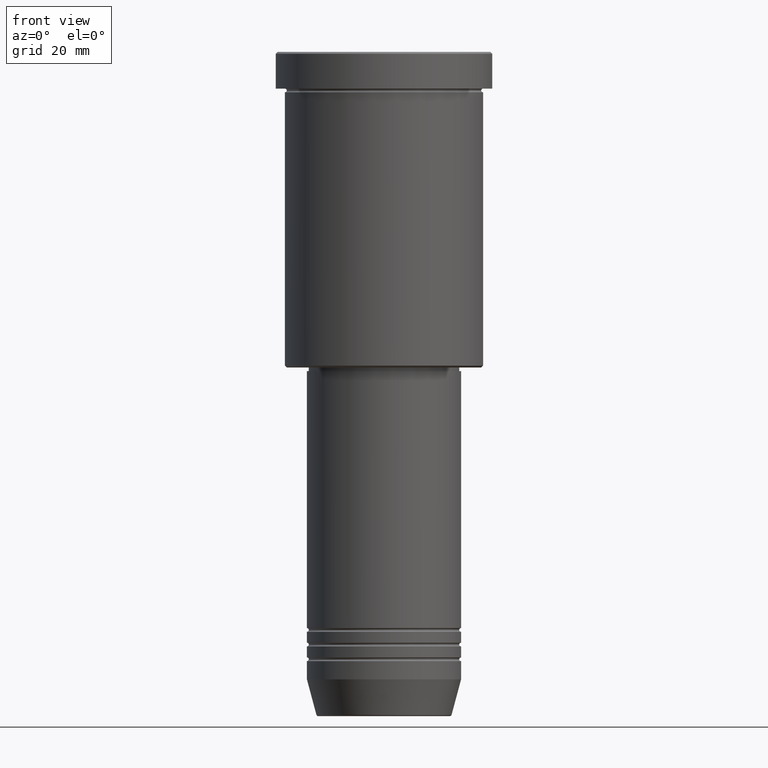
[diagram: clean part render]
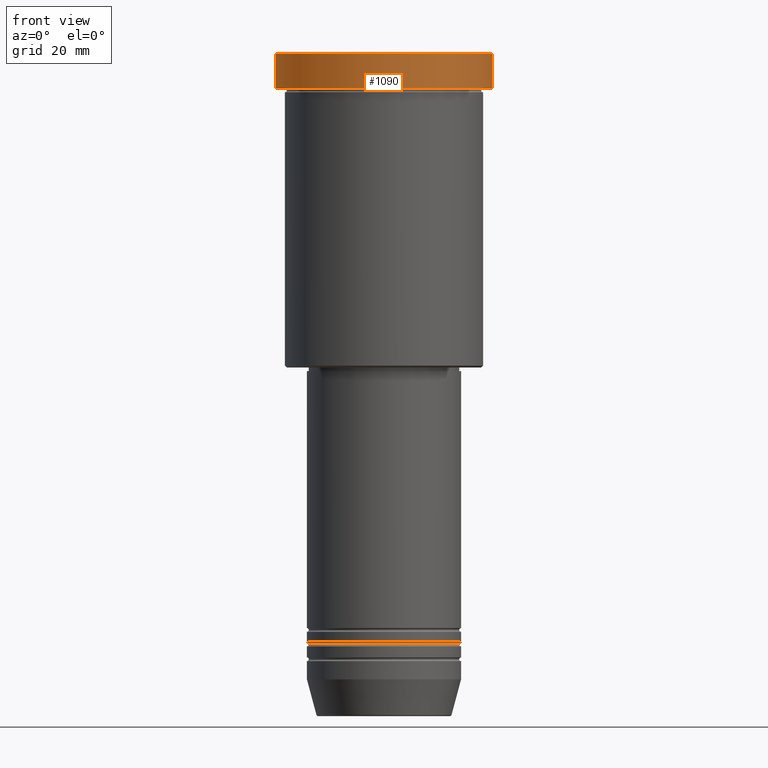
[diagram: same view with one face highlighted and labeled with its STEP entity id]
A machine part, front view. The second image highlights one B-rep face of the part: STEP entity #1090.
In plain terms, the highlighted cylindrical surface (partial cylindrical patch) has radius 29.5 mm, axis along (-0, -0, 1).
Its self-contained STEP definition (entity closure, byte-faithful):
#7 = CARTESIAN_POINT ( 'NONE',  ( 29.50000000000000000, 0.000000000000000000, -9.999999999999992895 ) ) ;
#39 = VECTOR ( 'NONE', #718, 1000.000000000000000 ) ;
#42 = EDGE_CURVE ( 'NONE', #979, #1159, #1024, .T. ) ;
#78 = CARTESIAN_POINT ( 'NONE',  ( -29.50000000000000000, 3.612708057484691604E-15, -9.999999999999992895 ) ) ;
#91 = ORIENTED_EDGE ( 'NONE', *, *, #473, .T. ) ;
#97 = EDGE_LOOP ( 'NONE', ( #912, #890, #271, #91 ) ) ;
#101 = DIRECTION ( 'NONE',  ( 1.000000000000000000, 0.000000000000000000, 0.000000000000000000 ) ) ;
#105 = CIRCLE ( 'NONE', #752, 29.50000000000000000 ) ;
#190 = LINE ( 'NONE', #347, #39 ) ;
#197 = VECTOR ( 'NONE', #1144, 1000.000000000000000 ) ;
#271 = ORIENTED_EDGE ( 'NONE', *, *, #772, .T. ) ;
#279 = VERTEX_POINT ( 'NONE', #1160 ) ;
#312 = DIRECTION ( 'NONE',  ( 1.000000000000000000, 0.000000000000000000, 0.000000000000000000 ) ) ;
#347 = CARTESIAN_POINT ( 'NONE',  ( -29.50000000000000000, 3.612708057484691604E-15, 0.000000000000000000 ) ) ;
#471 = CARTESIAN_POINT ( 'NONE',  ( 0.000000000000000000, 0.000000000000000000, -9.999999999999992895 ) ) ;
#473 = EDGE_CURVE ( 'NONE', #607, #279, #105, .T. ) ;
#507 = AXIS2_PLACEMENT_3D ( 'NONE', #471, #758, #841 ) ;
#607 = VERTEX_POINT ( 'NONE', #801 ) ;
#629 = CYLINDRICAL_SURFACE ( 'NONE', #658, 29.50000000000000000 ) ;
#658 = AXIS2_PLACEMENT_3D ( 'NONE', #1000, #1179, #101 ) ;
#671 = DIRECTION ( 'NONE',  ( 0.000000000000000000, 0.000000000000000000, -1.000000000000000000 ) ) ;
#718 = DIRECTION ( 'NONE',  ( -0.000000000000000000, -0.000000000000000000, 1.000000000000000000 ) ) ;
#752 = AXIS2_PLACEMENT_3D ( 'NONE', #942, #671, #312 ) ;
#758 = DIRECTION ( 'NONE',  ( -0.000000000000000000, -0.000000000000000000, 1.000000000000000000 ) ) ;
#772 = EDGE_CURVE ( 'NONE', #1159, #607, #982, .T. ) ;
#801 = CARTESIAN_POINT ( 'NONE',  ( 29.50000000000000000, 0.000000000000000000, -0.5000000000000004441 ) ) ;
#841 = DIRECTION ( 'NONE',  ( 1.000000000000000000, 0.000000000000000000, 0.000000000000000000 ) ) ;
#889 = CARTESIAN_POINT ( 'NONE',  ( 29.50000000000000000, 0.000000000000000000, 0.000000000000000000 ) ) ;
#890 = ORIENTED_EDGE ( 'NONE', *, *, #42, .T. ) ;
#912 = ORIENTED_EDGE ( 'NONE', *, *, #1098, .F. ) ;
#942 = CARTESIAN_POINT ( 'NONE',  ( 0.000000000000000000, 0.000000000000000000, -0.5000000000000004441 ) ) ;
#976 = FACE_OUTER_BOUND ( 'NONE', #97, .T. ) ;
#979 = VERTEX_POINT ( 'NONE', #78 ) ;
#982 = LINE ( 'NONE', #889, #197 ) ;
#1000 = CARTESIAN_POINT ( 'NONE',  ( 0.000000000000000000, 0.000000000000000000, 0.000000000000000000 ) ) ;
#1024 = CIRCLE ( 'NONE', #507, 29.50000000000000000 ) ;
#1090 = ADVANCED_FACE ( 'NONE', ( #976 ), #629, .T. ) ;
#1098 = EDGE_CURVE ( 'NONE', #979, #279, #190, .T. ) ;
#1144 = DIRECTION ( 'NONE',  ( -0.000000000000000000, -0.000000000000000000, 1.000000000000000000 ) ) ;
#1159 = VERTEX_POINT ( 'NONE', #7 ) ;
#1160 = CARTESIAN_POINT ( 'NONE',  ( -29.50000000000000000, 3.612708057484691604E-15, -0.5000000000000004441 ) ) ;
#1179 = DIRECTION ( 'NONE',  ( -0.000000000000000000, -0.000000000000000000, 1.000000000000000000 ) ) ;